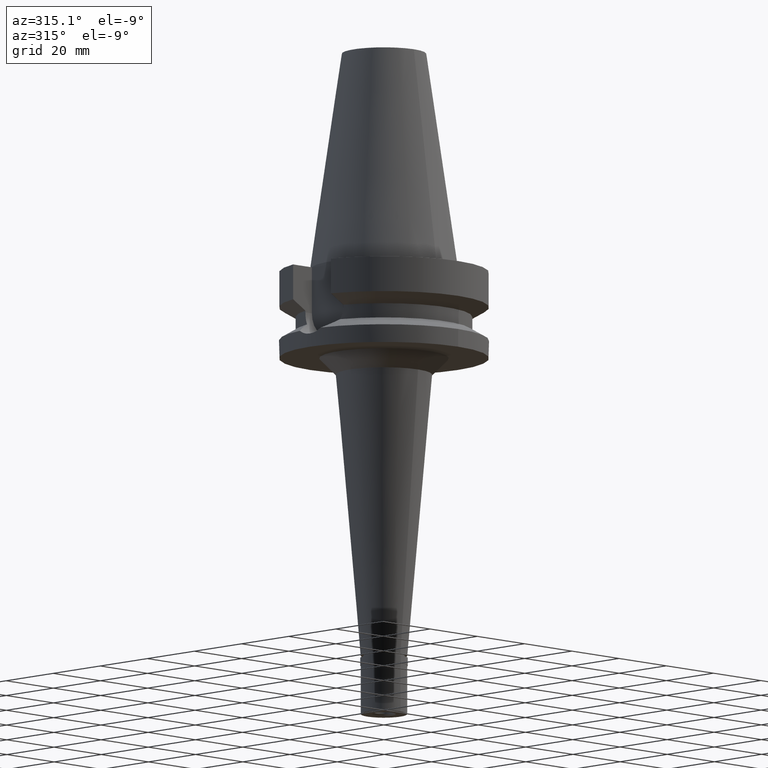
[diagram: clean part render]
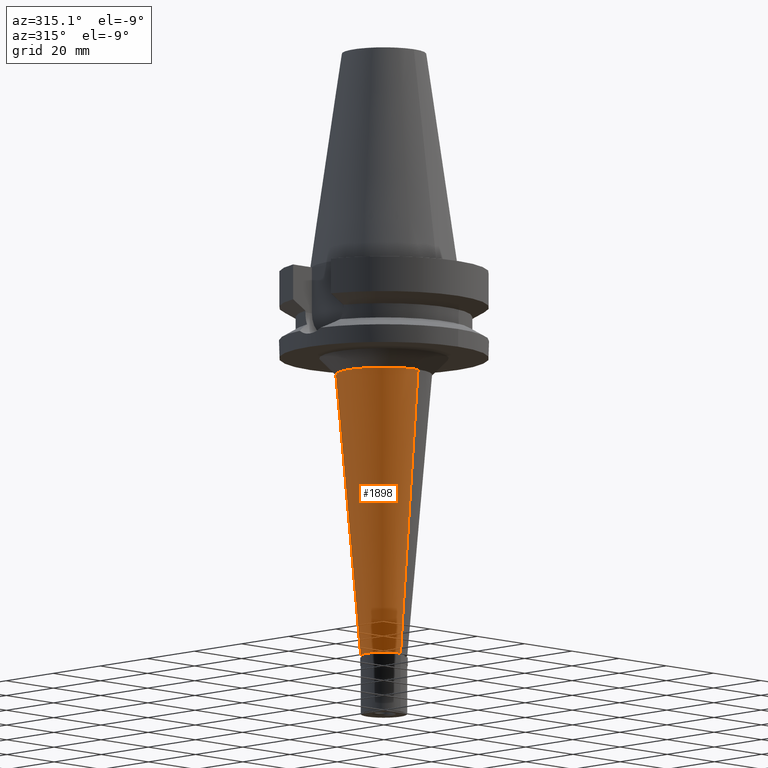
[diagram: same view with one face highlighted and labeled with its STEP entity id]
A machine part, auxiliary view. The second image highlights one B-rep face of the part: STEP entity #1898.
In plain terms, the highlighted conical surface has half-angle 5 deg.
Its self-contained STEP definition (entity closure, byte-faithful):
#183 = VECTOR ( 'NONE', #2243, 1000.000000000000000 ) ;
#302 = EDGE_LOOP ( 'NONE', ( #2611, #2359, #2890, #1947 ) ) ;
#337 = CARTESIAN_POINT ( 'NONE',  ( 0.0000000000000000000, 14.46278299875999984, -32.00000000000000000 ) ) ;
#352 = DIRECTION ( 'NONE',  ( 0.0000000000000000000, -1.000000000000000000, 0.0000000000000000000 ) ) ;
#458 = CARTESIAN_POINT ( 'NONE',  ( 0.0000000000000000000, 0.0000000000000000000, -117.2999999999999972 ) ) ;
#515 = DIRECTION ( 'NONE',  ( 0.0000000000000000000, -0.08715574274765398866, -0.9961946980917458783 ) ) ;
#552 = VERTEX_POINT ( 'NONE', #337 ) ;
#614 = CARTESIAN_POINT ( 'NONE',  ( 0.0000000000000000000, 0.0000000000000000000, -32.00000000000000000 ) ) ;
#647 = CARTESIAN_POINT ( 'NONE',  ( 0.0000000000000000000, -14.46278299875999984, -32.00000000000000000 ) ) ;
#654 = EDGE_CURVE ( 'NONE', #552, #1262, #1180, .T. ) ;
#671 = DIRECTION ( 'NONE',  ( 0.0000000000000000000, 1.000000000000000000, 0.0000000000000000000 ) ) ;
#759 = CIRCLE ( 'NONE', #2427, 14.46278299875999984 ) ;
#907 = CARTESIAN_POINT ( 'NONE',  ( 0.0000000000000000000, 0.0000000000000000000, -74.64999999999999147 ) ) ;
#1088 = DIRECTION ( 'NONE',  ( 0.0000000000000000000, 1.000000000000000000, 0.0000000000000000000 ) ) ;
#1147 = CARTESIAN_POINT ( 'NONE',  ( 0.0000000000000000000, -6.999999999998999911, -117.2999999999999972 ) ) ;
#1149 = AXIS2_PLACEMENT_3D ( 'NONE', #458, #2002, #1088 ) ;
#1180 = LINE ( 'NONE', #2085, #2010 ) ;
#1262 = VERTEX_POINT ( 'NONE', #1899 ) ;
#1384 = VERTEX_POINT ( 'NONE', #1470 ) ;
#1470 = CARTESIAN_POINT ( 'NONE',  ( 0.0000000000000000000, -14.46278299875999984, -32.00000000000000000 ) ) ;
#1590 = EDGE_CURVE ( 'NONE', #1262, #1825, #1730, .T. ) ;
#1615 = CONICAL_SURFACE ( 'NONE', #2570, 10.73139149938000081, 0.08726646259969973729 ) ;
#1719 = EDGE_CURVE ( 'NONE', #1384, #1825, #2464, .T. ) ;
#1730 = CIRCLE ( 'NONE', #1149, 6.999999999998999911 ) ;
#1825 = VERTEX_POINT ( 'NONE', #1147 ) ;
#1898 = ADVANCED_FACE ( 'NONE', ( #2940 ), #1615, .T. ) ;
#1899 = CARTESIAN_POINT ( 'NONE',  ( 0.0000000000000000000, 6.999999999998999911, -117.2999999999999972 ) ) ;
#1947 = ORIENTED_EDGE ( 'NONE', *, *, #654, .T. ) ;
#2002 = DIRECTION ( 'NONE',  ( 0.0000000000000000000, 0.0000000000000000000, 1.000000000000000000 ) ) ;
#2010 = VECTOR ( 'NONE', #515, 1000.000000000000000 ) ;
#2085 = CARTESIAN_POINT ( 'NONE',  ( 0.0000000000000000000, 14.46278299875999984, -32.00000000000000000 ) ) ;
#2243 = DIRECTION ( 'NONE',  ( 0.0000000000000000000, 0.08715574274765398866, -0.9961946980917458783 ) ) ;
#2355 = EDGE_CURVE ( 'NONE', #1384, #552, #759, .T. ) ;
#2359 = ORIENTED_EDGE ( 'NONE', *, *, #1719, .F. ) ;
#2401 = DIRECTION ( 'NONE',  ( 0.0000000000000000000, 0.0000000000000000000, -1.000000000000000000 ) ) ;
#2427 = AXIS2_PLACEMENT_3D ( 'NONE', #614, #2401, #352 ) ;
#2464 = LINE ( 'NONE', #647, #183 ) ;
#2570 = AXIS2_PLACEMENT_3D ( 'NONE', #907, #2716, #671 ) ;
#2611 = ORIENTED_EDGE ( 'NONE', *, *, #1590, .T. ) ;
#2716 = DIRECTION ( 'NONE',  ( 0.0000000000000000000, 0.0000000000000000000, 1.000000000000000000 ) ) ;
#2890 = ORIENTED_EDGE ( 'NONE', *, *, #2355, .T. ) ;
#2940 = FACE_OUTER_BOUND ( 'NONE', #302, .T. ) ;